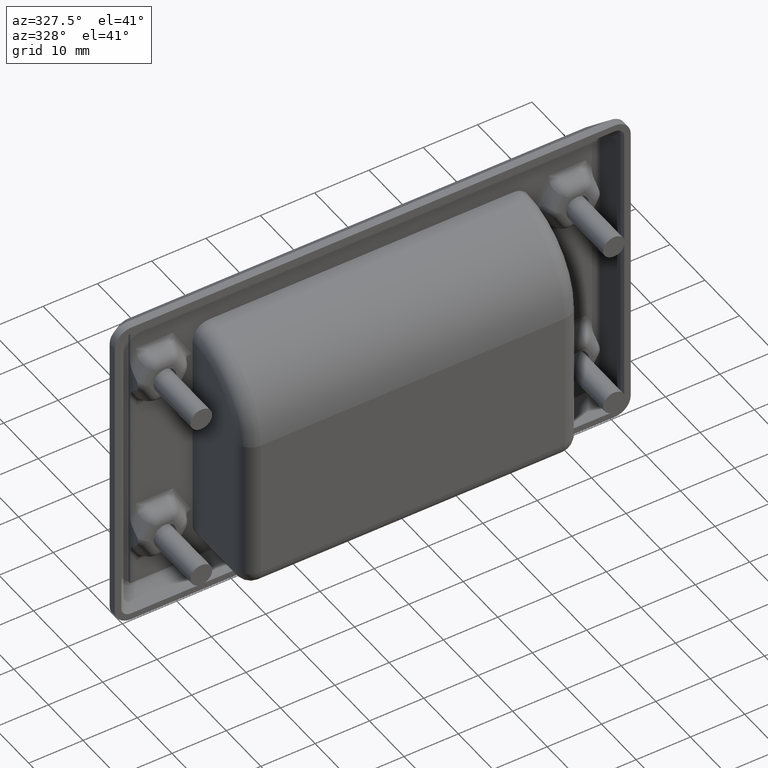
[diagram: clean part render]
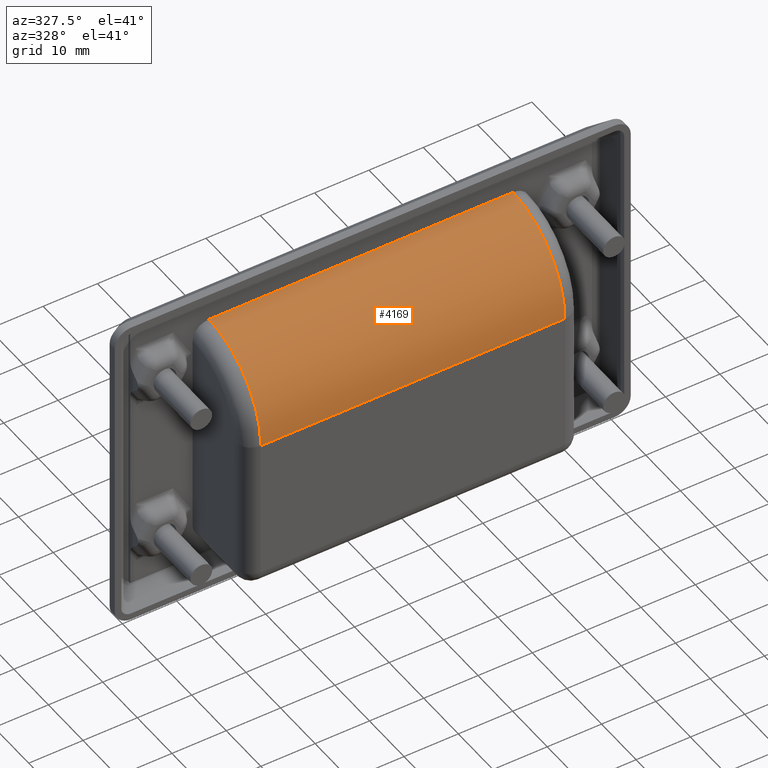
[diagram: same view with one face highlighted and labeled with its STEP entity id]
A machine part, auxiliary view. The second image highlights one B-rep face of the part: STEP entity #4169.
In plain terms, the highlighted cylindrical surface (partial cylindrical patch) has radius 15 mm, axis along (1, -0, 0).
Its self-contained STEP definition (entity closure, byte-faithful):
#490=LINE('',#8268,#805);
#491=LINE('',#8271,#806);
#805=VECTOR('',#5880,56.);
#806=VECTOR('',#5883,56.);
#1178=FACE_OUTER_BOUND('',#1468,.T.);
#1468=EDGE_LOOP('',(#3702,#3703,#3704,#3705));
#1656=CIRCLE('',#4637,15.);
#1658=CIRCLE('',#4642,15.);
#2001=VERTEX_POINT('',#8251);
#2003=VERTEX_POINT('',#8257);
#2005=VERTEX_POINT('',#8267);
#2006=VERTEX_POINT('',#8269);
#2584=EDGE_CURVE('',#2001,#2003,#1656,.T.);
#2587=EDGE_CURVE('',#2001,#2005,#490,.T.);
#2588=EDGE_CURVE('',#2006,#2005,#1658,.T.);
#2589=EDGE_CURVE('',#2003,#2006,#491,.T.);
#3702=ORIENTED_EDGE('',*,*,#2584,.F.);
#3703=ORIENTED_EDGE('',*,*,#2587,.T.);
#3704=ORIENTED_EDGE('',*,*,#2588,.F.);
#3705=ORIENTED_EDGE('',*,*,#2589,.F.);
#3912=CYLINDRICAL_SURFACE('',#4641,15.);
#4169=ADVANCED_FACE('',(#1178),#3912,.T.);
#4637=AXIS2_PLACEMENT_3D('',#8261,#5869,#5870);
#4641=AXIS2_PLACEMENT_3D('',#8266,#5878,#5879);
#4642=AXIS2_PLACEMENT_3D('',#8270,#5881,#5882);
#5869=DIRECTION('center_axis',(-1.,0.,0.));
#5870=DIRECTION('ref_axis',(0.,0.707106781186547,0.707106781186548));
#5878=DIRECTION('center_axis',(1.,0.,0.));
#5879=DIRECTION('ref_axis',(0.,1.,-1.01770443923973E-16));
#5880=DIRECTION('',(1.,0.,0.));
#5881=DIRECTION('center_axis',(1.,0.,0.));
#5882=DIRECTION('ref_axis',(0.,0.707106781186547,0.707106781186548));
#5883=DIRECTION('',(1.,0.,0.));
#8251=CARTESIAN_POINT('',(-28.,6.99999999999997,15.5));
#8257=CARTESIAN_POINT('',(-28.,22.,0.500000000000006));
#8261=CARTESIAN_POINT('Origin',(-28.,6.99999999999998,0.500000000000003));
#8266=CARTESIAN_POINT('Origin',(0.,6.99999999999998,0.500000000000003));
#8267=CARTESIAN_POINT('',(28.,6.99999999999997,15.5));
#8268=CARTESIAN_POINT('',(0.,6.99999999999997,15.5));
#8269=CARTESIAN_POINT('',(28.,22.,0.500000000000006));
#8270=CARTESIAN_POINT('Origin',(28.,6.99999999999998,0.500000000000003));
#8271=CARTESIAN_POINT('',(0.,22.,0.500000000000006));